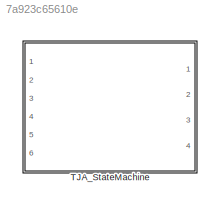
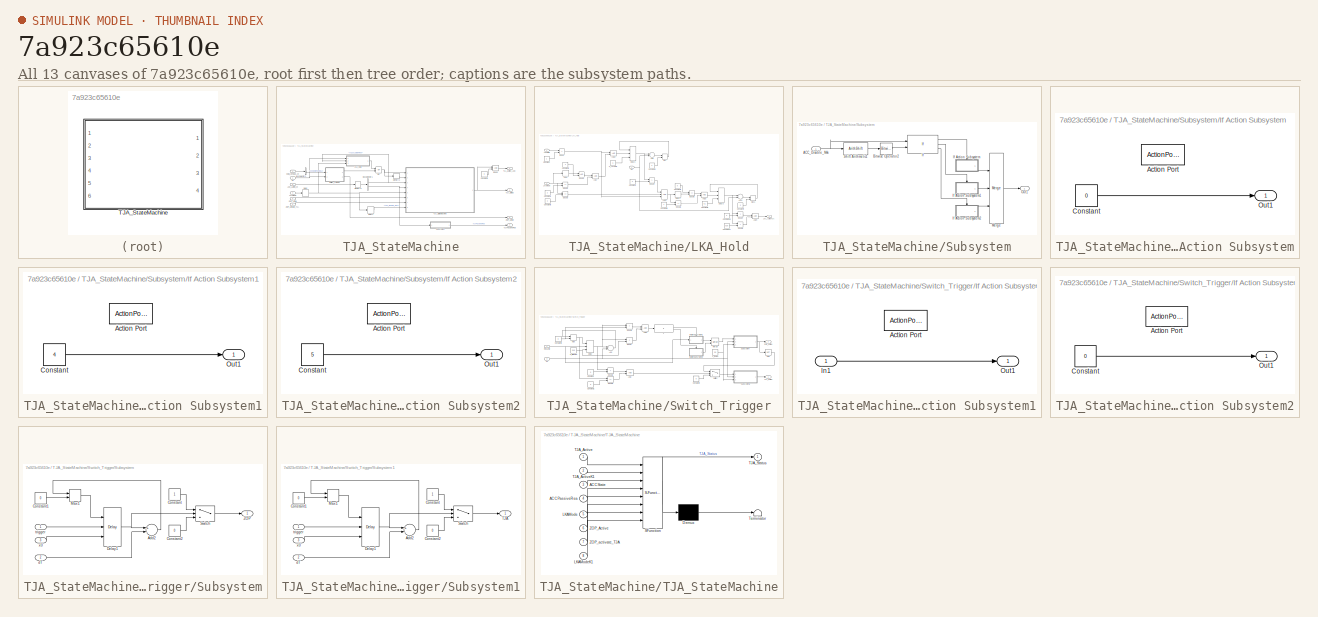
[diagram: thumbnail index - all 13 canvases of the model, root first then tree order]
MODEL slx_7a923c65610e
KIND model
CONFIG AbsTol = auto
CONFIG EnableMultiTasking = off
CONFIG FixedStep = auto
CONFIG MaxStep = auto
CONFIG MinStep = auto
CONFIG RelTol = 1e-3
CONFIG SampleTimeConstraint = Unconstrained
CONFIG Solver = VariableStepAuto
CONFIG SolverName = VariableStepAuto
CONFIG StartTime = 0.0
CONFIG StopTime = 10.0
BLOCK [SubSystem] TJA_StateMachine
  Ports = [6, 4]
  RequestExecContextInheritance = off
BLOCK [Inport] TJA_StateMachine/ACC_LgtCtrl_st
  IconDisplay = Port number
  Port = 3
BLOCK [BusSelector] TJA_StateMachine/Bus Selector1
  OutputAsBus = off
  OutputSignals = ACCVLCMainReq,ACC_Disable_Msk
  Ports = [1, 2]
BLOCK [BusSelector] TJA_StateMachine/Bus Selector2
  OutputAsBus = off
  OutputSignals = x1E1.CCSwStsRsmSwA
  Ports = [1, 1]
BLOCK [Inport] TJA_StateMachine/COM_VehBus_st
  IconDisplay = Port number
  Port = 2
BLOCK [Constant] TJA_StateMachine/Constant3
  OutDataTypeStr = single
  Value = 3
BLOCK [Delay] TJA_StateMachine/Delay
  DelayLength = 1
  InputPortMap = u0
  Ports = [1, 1]
BLOCK [Delay] TJA_StateMachine/Delay1
  DelayLength = 1
  InputPortMap = u0
  Ports = [1, 1]
BLOCK [RelationalOperator] TJA_StateMachine/Equal
  InputSameDT = off
  OutDataTypeStr = boolean
  Ports = [2, 1]
  RndMeth = Simplest
BLOCK [Inport] TJA_StateMachine/LKAMode
  IconDisplay = Port number
  Port = 4
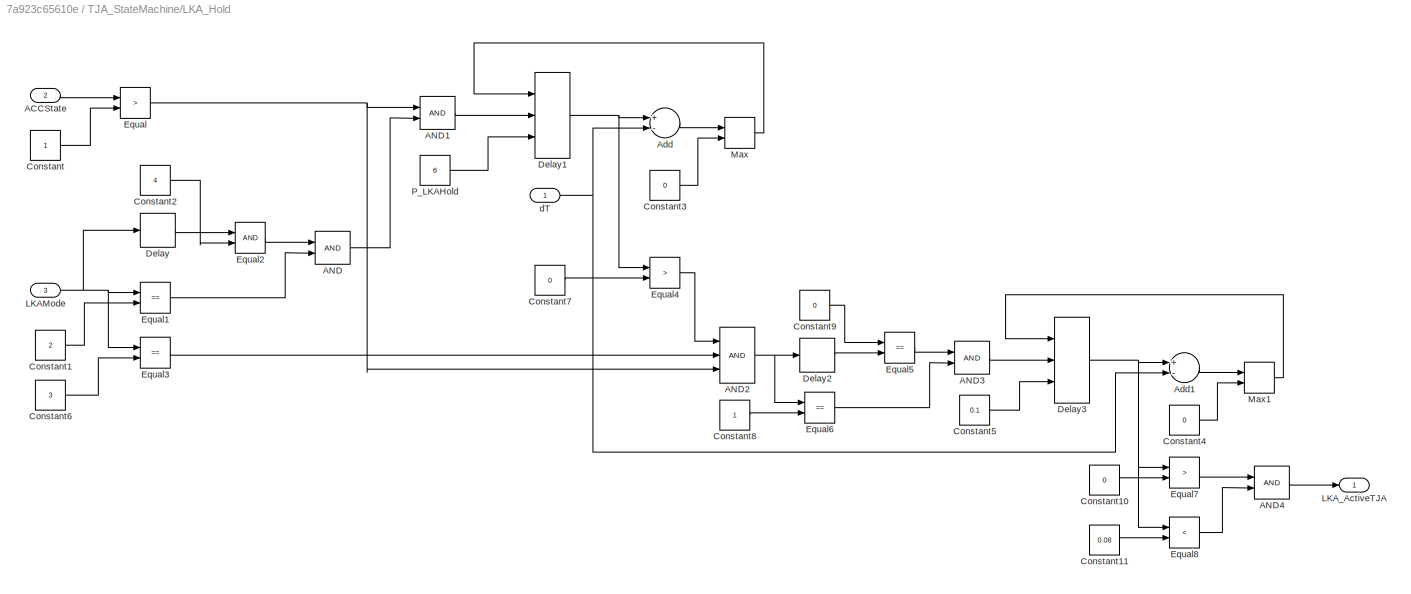
BLOCK [SubSystem] TJA_StateMachine/LKA_Hold
  Ports = [3, 1]
  RequestExecContextInheritance = off
BLOCK [Inport] TJA_StateMachine/LKA_Hold/ACCState
  IconDisplay = Port number
  Port = 2
BLOCK [Logic] TJA_StateMachine/LKA_Hold/AND
  AllPortsSameDT = off
  OutDataTypeStr = boolean
  Ports = [2, 1]
BLOCK [Logic] TJA_StateMachine/LKA_Hold/AND1
  AllPortsSameDT = off
  OutDataTypeStr = boolean
  Ports = [2, 1]
BLOCK [Logic] TJA_StateMachine/LKA_Hold/AND2
  AllPortsSameDT = off
  Inputs = 3
  OutDataTypeStr = boolean
  Ports = [3, 1]
BLOCK [Logic] TJA_StateMachine/LKA_Hold/AND3
  AllPortsSameDT = off
  OutDataTypeStr = boolean
  Ports = [2, 1]
BLOCK [Logic] TJA_StateMachine/LKA_Hold/AND4
  AllPortsSameDT = off
  OutDataTypeStr = boolean
  Ports = [2, 1]
BLOCK [Sum] TJA_StateMachine/LKA_Hold/Add
  InputSameDT = off
  Inputs = +-
  OutDataTypeStr = Inherit: Inherit via internal rule
  Ports = [2, 1]
  SaturateOnIntegerOverflow = off
BLOCK [Sum] TJA_StateMachine/LKA_Hold/Add1
  InputSameDT = off
  Inputs = +-
  OutDataTypeStr = Inherit: Inherit via internal rule
  Ports = [2, 1]
  SaturateOnIntegerOverflow = off
BLOCK [Constant] TJA_StateMachine/LKA_Hold/Constant
BLOCK [Constant] TJA_StateMachine/LKA_Hold/Constant1
  OutDataTypeStr = single
  Value = 2
BLOCK [Constant] TJA_StateMachine/LKA_Hold/Constant10
  OutDataTypeStr = single
  Value = 0
BLOCK [Constant] TJA_StateMachine/LKA_Hold/Constant11
  OutDataTypeStr = single
  Value = 0.08
BLOCK [Constant] TJA_StateMachine/LKA_Hold/Constant2
  OutDataTypeStr = single
  Value = 4
BLOCK [Constant] TJA_StateMachine/LKA_Hold/Constant3
  OutDataTypeStr = single
  Value = 0
BLOCK [Constant] TJA_StateMachine/LKA_Hold/Constant4
  OutDataTypeStr = single
  Value = 0
BLOCK [Constant] TJA_StateMachine/LKA_Hold/Constant5
  OutDataTypeStr = single
  Value = 0.1
BLOCK [Constant] TJA_StateMachine/LKA_Hold/Constant6
  OutDataTypeStr = single
  Value = 3
BLOCK [Constant] TJA_StateMachine/LKA_Hold/Constant7
  OutDataTypeStr = single
  Value = 0
BLOCK [Constant] TJA_StateMachine/LKA_Hold/Constant8
  OutDataTypeStr = single
BLOCK [Constant] TJA_StateMachine/LKA_Hold/Constant9
  OutDataTypeStr = single
  Value = 0
BLOCK [Delay] TJA_StateMachine/LKA_Hold/Delay
  DelayLength = 1
  InputPortMap = u0
  Ports = [1, 1]
BLOCK [Delay] TJA_StateMachine/LKA_Hold/Delay1
  DelayLength = 1
  ExternalReset = Rising
  InitialConditionSource = Input port
  InputPortMap = u0,r5,p4
  Ports = [3, 1]
BLOCK [Delay] TJA_StateMachine/LKA_Hold/Delay2
  DelayLength = 1
  InputPortMap = u0
  Ports = [1, 1]
BLOCK [Delay] TJA_StateMachine/LKA_Hold/Delay3
  DelayLength = 1
  ExternalReset = Rising
  InitialConditionSource = Input port
  InputPortMap = u0,r5,p4
  Ports = [3, 1]
BLOCK [RelationalOperator] TJA_StateMachine/LKA_Hold/Equal
  InputSameDT = off
  Operator = >
  OutDataTypeStr = boolean
  Ports = [2, 1]
  RndMeth = Simplest
BLOCK [RelationalOperator] TJA_StateMachine/LKA_Hold/Equal1
  InputSameDT = off
  Operator = ==
  OutDataTypeStr = boolean
  Ports = [2, 1]
  RndMeth = Simplest
BLOCK [RelationalOperator] TJA_StateMachine/LKA_Hold/Equal2
  InputSameDT = off
  OutDataTypeStr = boolean
  Ports = [2, 1]
  RndMeth = Simplest
BLOCK [RelationalOperator] TJA_StateMachine/LKA_Hold/Equal3
  InputSameDT = off
  Operator = ==
  OutDataTypeStr = boolean
  Ports = [2, 1]
  RndMeth = Simplest
BLOCK [RelationalOperator] TJA_StateMachine/LKA_Hold/Equal4
  InputSameDT = off
  Operator = >
  OutDataTypeStr = boolean
  Ports = [2, 1]
  RndMeth = Simplest
BLOCK [RelationalOperator] TJA_StateMachine/LKA_Hold/Equal5
  InputSameDT = off
  Operator = ==
  OutDataTypeStr = boolean
  Ports = [2, 1]
  RndMeth = Simplest
BLOCK [RelationalOperator] TJA_StateMachine/LKA_Hold/Equal6
  InputSameDT = off
  Operator = ==
  OutDataTypeStr = boolean
  Ports = [2, 1]
  RndMeth = Simplest
BLOCK [RelationalOperator] TJA_StateMachine/LKA_Hold/Equal7
  InputSameDT = off
  Operator = >
  OutDataTypeStr = boolean
  Ports = [2, 1]
  RndMeth = Simplest
BLOCK [RelationalOperator] TJA_StateMachine/LKA_Hold/Equal8
  InputSameDT = off
  Operator = <
  OutDataTypeStr = boolean
  Ports = [2, 1]
  RndMeth = Simplest
BLOCK [Inport] TJA_StateMachine/LKA_Hold/LKAMode
  IconDisplay = Port number
  Port = 3
BLOCK [Outport] TJA_StateMachine/LKA_Hold/LKA_ActiveTJA
  IconDisplay = Port number
BLOCK [MinMax] TJA_StateMachine/LKA_Hold/Max
  Function = max
  InputSameDT = off
  Inputs = 2
  Ports = [2, 1]
  SaturateOnIntegerOverflow = off
BLOCK [MinMax] TJA_StateMachine/LKA_Hold/Max1
  Function = max
  InputSameDT = off
  Inputs = 2
  Ports = [2, 1]
  SaturateOnIntegerOverflow = off
BLOCK [Constant] TJA_StateMachine/LKA_Hold/P_LKAHold
  OutDataTypeStr = single
  Value = 6
BLOCK [Inport] TJA_StateMachine/LKA_Hold/dT
  IconDisplay = Port number
BLOCK [Memory] TJA_StateMachine/Memory1
BLOCK [Memory] TJA_StateMachine/Memory2
BLOCK [Logic] TJA_StateMachine/OR
  AllPortsSameDT = off
  Operator = OR
  OutDataTypeStr = boolean
  Ports = [2, 1]
BLOCK [SubSystem] TJA_StateMachine/Subsystem
  Ports = [1, 1]
  RequestExecContextInheritance = off
BLOCK [Inport] TJA_StateMachine/Subsystem/ACC_Disable_Msk
  IconDisplay = Port number
BLOCK [Reference] TJA_StateMachine/Subsystem/Bitwise Operator2  REF=simulink/Logic and Bit
Operations/Bitwise
Operator
  Ports = [1, 1]
  SourceBlock = simulink/Logic and Bit\nOperations/Bitwise\nOperator
  SourceProductBaseCode = SL
  SourceProductName = Simulink
  SourceType = Bitwise Operator
BLOCK [If] TJA_StateMachine/Subsystem/If
  ElseIfExpressions = u2 == 1
  IfExpression = u1 == 0
  NumInputs = 2
  Ports = [2, 3]
BLOCK [SubSystem] TJA_StateMachine/Subsystem/If Action Subsystem
  Ports = [0, 1, 0, 0, 0, 0, 0, 1]
  RequestExecContextInheritance = off
  TreatAsAtomicUnit = on
BLOCK [ActionPort] TJA_StateMachine/Subsystem/If Action Subsystem/Action Port
BLOCK [Constant] TJA_StateMachine/Subsystem/If Action Subsystem/Constant
  OutDataTypeStr = single
  Value = 0
BLOCK [Outport] TJA_StateMachine/Subsystem/If Action Subsystem/Out1
  IconDisplay = Port number
BLOCK [SubSystem] TJA_StateMachine/Subsystem/If Action Subsystem1
  Ports = [0, 1, 0, 0, 0, 0, 0, 1]
  RequestExecContextInheritance = off
  TreatAsAtomicUnit = on
BLOCK [ActionPort] TJA_StateMachine/Subsystem/If Action Subsystem1/Action Port
BLOCK [Constant] TJA_StateMachine/Subsystem/If Action Subsystem1/Constant
  OutDataTypeStr = single
  Value = 4
BLOCK [Outport] TJA_StateMachine/Subsystem/If Action Subsystem1/Out1
  IconDisplay = Port number
BLOCK [SubSystem] TJA_StateMachine/Subsystem/If Action Subsystem2
  Ports = [0, 1, 0, 0, 0, 0, 0, 1]
  RequestExecContextInheritance = off
  TreatAsAtomicUnit = on
BLOCK [ActionPort] TJA_StateMachine/Subsystem/If Action Subsystem2/Action Port
BLOCK [Constant] TJA_StateMachine/Subsystem/If Action Subsystem2/Constant
  OutDataTypeStr = single
  Value = 5
BLOCK [Outport] TJA_StateMachine/Subsystem/If Action Subsystem2/Out1
  IconDisplay = Port number
BLOCK [Merge] TJA_StateMachine/Subsystem/Merge
  Inputs = 3
  Ports = [3, 1]
BLOCK [Outport] TJA_StateMachine/Subsystem/Out1
  IconDisplay = Port number
BLOCK [ArithShift] TJA_StateMachine/Subsystem/Shift Arithmetic1
  BitShiftDirection = Right
  BitShiftNumber = 3
  InputPortMap = u0
  Ports = [1, 1]
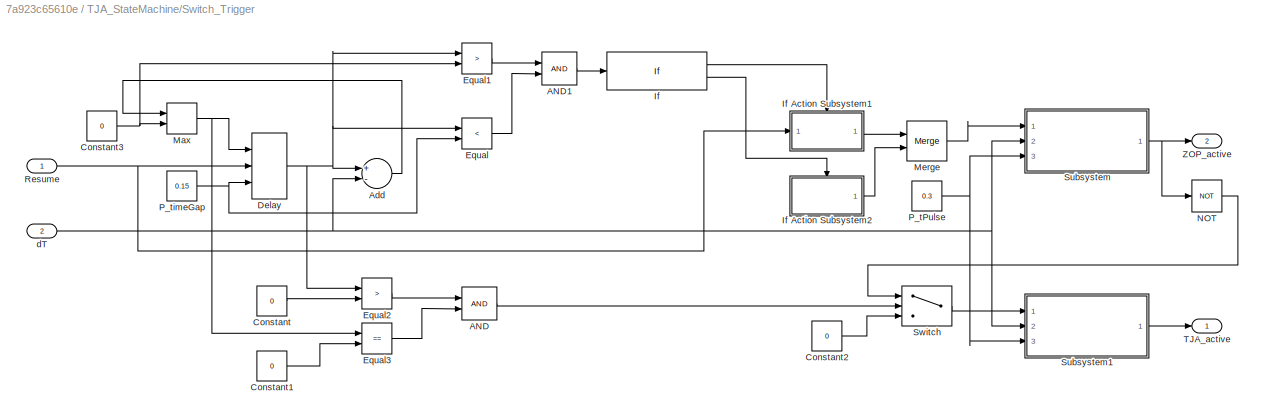
BLOCK [SubSystem] TJA_StateMachine/Switch_Trigger
  Ports = [2, 2]
  RequestExecContextInheritance = off
BLOCK [Logic] TJA_StateMachine/Switch_Trigger/AND
  AllPortsSameDT = off
  OutDataTypeStr = boolean
  Ports = [2, 1]
BLOCK [Logic] TJA_StateMachine/Switch_Trigger/AND1
  AllPortsSameDT = off
  OutDataTypeStr = boolean
  Ports = [2, 1]
BLOCK [Sum] TJA_StateMachine/Switch_Trigger/Add
  InputSameDT = off
  Inputs = +-
  OutDataTypeStr = Inherit: Inherit via internal rule
  Ports = [2, 1]
  SaturateOnIntegerOverflow = off
BLOCK [Constant] TJA_StateMachine/Switch_Trigger/Constant
  Value = 0
BLOCK [Constant] TJA_StateMachine/Switch_Trigger/Constant1
  Value = 0
BLOCK [Constant] TJA_StateMachine/Switch_Trigger/Constant2
  Value = 0
BLOCK [Constant] TJA_StateMachine/Switch_Trigger/Constant3
  OutDataTypeStr = single
  Value = 0
BLOCK [Delay] TJA_StateMachine/Switch_Trigger/Delay
  DelayLength = 1
  ExternalReset = Falling
  InitialConditionSource = Input port
  InputPortMap = u0,r5,p4
  Ports = [3, 1]
BLOCK [RelationalOperator] TJA_StateMachine/Switch_Trigger/Equal
  InputSameDT = off
  Operator = <
  OutDataTypeStr = boolean
  Ports = [2, 1]
  RndMeth = Simplest
BLOCK [RelationalOperator] TJA_StateMachine/Switch_Trigger/Equal1
  InputSameDT = off
  Operator = >
  OutDataTypeStr = boolean
  Ports = [2, 1]
  RndMeth = Simplest
BLOCK [RelationalOperator] TJA_StateMachine/Switch_Trigger/Equal2
  InputSameDT = off
  Operator = >
  OutDataTypeStr = boolean
  Ports = [2, 1]
  RndMeth = Simplest
BLOCK [RelationalOperator] TJA_StateMachine/Switch_Trigger/Equal3
  InputSameDT = off
  Operator = ==
  OutDataTypeStr = boolean
  Ports = [2, 1]
  RndMeth = Simplest
BLOCK [If] TJA_StateMachine/Switch_Trigger/If
  IfExpression = u1 == 1
  Ports = [1, 2]
BLOCK [SubSystem] TJA_StateMachine/Switch_Trigger/If Action Subsystem1
  Ports = [1, 1, 0, 0, 0, 0, 0, 1]
  RequestExecContextInheritance = off
  TreatAsAtomicUnit = on
BLOCK [ActionPort] TJA_StateMachine/Switch_Trigger/If Action Subsystem1/Action Port
BLOCK [Inport] TJA_StateMachine/Switch_Trigger/If Action Subsystem1/In1
  IconDisplay = Port number
BLOCK [Outport] TJA_StateMachine/Switch_Trigger/If Action Subsystem1/Out1
  IconDisplay = Port number
BLOCK [SubSystem] TJA_StateMachine/Switch_Trigger/If Action Subsystem2
  Ports = [0, 1, 0, 0, 0, 0, 0, 1]
  RequestExecContextInheritance = off
  TreatAsAtomicUnit = on
BLOCK [ActionPort] TJA_StateMachine/Switch_Trigger/If Action Subsystem2/Action Port
BLOCK [Constant] TJA_StateMachine/Switch_Trigger/If Action Subsystem2/Constant
  OutDataTypeStr = boolean
  Value = 0
BLOCK [Outport] TJA_StateMachine/Switch_Trigger/If Action Subsystem2/Out1
  IconDisplay = Port number
BLOCK [MinMax] TJA_StateMachine/Switch_Trigger/Max
  Function = max
  InputSameDT = off
  Inputs = 2
  Ports = [2, 1]
  SaturateOnIntegerOverflow = off
BLOCK [Merge] TJA_StateMachine/Switch_Trigger/Merge
  Ports = [2, 1]
BLOCK [Logic] TJA_StateMachine/Switch_Trigger/NOT
  AllPortsSameDT = off
  Operator = NOT
  OutDataTypeStr = boolean
  Ports = [1, 1]
BLOCK [Constant] TJA_StateMachine/Switch_Trigger/P_tPulse
  Value = 0.3
BLOCK [Constant] TJA_StateMachine/Switch_Trigger/P_timeGap
  Value = 0.15
BLOCK [Inport] TJA_StateMachine/Switch_Trigger/Resume
  IconDisplay = Port number
BLOCK [SubSystem] TJA_StateMachine/Switch_Trigger/Subsystem
  Ports = [3, 1]
  RequestExecContextInheritance = off
BLOCK [Sum] TJA_StateMachine/Switch_Trigger/Subsystem/Add2
  InputSameDT = off
  Inputs = +-
  OutDataTypeStr = Inherit: Inherit via internal rule
  Ports = [2, 1]
  SaturateOnIntegerOverflow = off
BLOCK [Constant] TJA_StateMachine/Switch_Trigger/Subsystem/Constant
BLOCK [Constant] TJA_StateMachine/Switch_Trigger/Subsystem/Constant1
  Value = 0
BLOCK [Constant] TJA_StateMachine/Switch_Trigger/Subsystem/Constant2
  Value = 0
BLOCK [Delay] TJA_StateMachine/Switch_Trigger/Subsystem/Delay1
  DelayLength = 1
  ExternalReset = Rising
  InitialConditionSource = Input port
  InputPortMap = u0,r5,p4
  Ports = [3, 1]
BLOCK [MinMax] TJA_StateMachine/Switch_Trigger/Subsystem/Max1
  Function = max
  InputSameDT = off
  Inputs = 2
  Ports = [2, 1]
  SaturateOnIntegerOverflow = off
BLOCK [Switch] TJA_StateMachine/Switch_Trigger/Subsystem/Switch
  Criteria = u2 > Threshold
  InputSameDT = off
  SaturateOnIntegerOverflow = off
BLOCK [Outport] TJA_StateMachine/Switch_Trigger/Subsystem/ZOP
  IconDisplay = Port number
BLOCK [Inport] TJA_StateMachine/Switch_Trigger/Subsystem/dT
  IconDisplay = Port number
  Port = 2
BLOCK [Inport] TJA_StateMachine/Switch_Trigger/Subsystem/trigger
  IconDisplay = Port number
BLOCK [Inport] TJA_StateMachine/Switch_Trigger/Subsystem/x0
  IconDisplay = Port number
  Port = 3
BLOCK [SubSystem] TJA_StateMachine/Switch_Trigger/Subsystem1
  Ports = [3, 1]
  RequestExecContextInheritance = off
BLOCK [Sum] TJA_StateMachine/Switch_Trigger/Subsystem1/Add2
  InputSameDT = off
  Inputs = +-
  OutDataTypeStr = Inherit: Inherit via internal rule
  Ports = [2, 1]
  SaturateOnIntegerOverflow = off
BLOCK [Constant] TJA_StateMachine/Switch_Trigger/Subsystem1/Constant
BLOCK [Constant] TJA_StateMachine/Switch_Trigger/Subsystem1/Constant1
  Value = 0
BLOCK [Constant] TJA_StateMachine/Switch_Trigger/Subsystem1/Constant2
  Value = 0
BLOCK [Delay] TJA_StateMachine/Switch_Trigger/Subsystem1/Delay1
  DelayLength = 1
  ExternalReset = Rising
  InitialConditionSource = Input port
  InputPortMap = u0,r5,p4
  Ports = [3, 1]
BLOCK [MinMax] TJA_StateMachine/Switch_Trigger/Subsystem1/Max1
  Function = max
  InputSameDT = off
  Inputs = 2
  Ports = [2, 1]
  SaturateOnIntegerOverflow = off
BLOCK [Switch] TJA_StateMachine/Switch_Trigger/Subsystem1/Switch
  Criteria = u2 > Threshold
  InputSameDT = off
  SaturateOnIntegerOverflow = off
BLOCK [Outport] TJA_StateMachine/Switch_Trigger/Subsystem1/TJA
  IconDisplay = Port number
BLOCK [Inport] TJA_StateMachine/Switch_Trigger/Subsystem1/dT
  IconDisplay = Port number
  Port = 2
BLOCK [Inport] TJA_StateMachine/Switch_Trigger/Subsystem1/trigger
  IconDisplay = Port number
BLOCK [Inport] TJA_StateMachine/Switch_Trigger/Subsystem1/x0
  IconDisplay = Port number
  Port = 3
BLOCK [Switch] TJA_StateMachine/Switch_Trigger/Switch
  Criteria = u2 > Threshold
  InputSameDT = off
  SaturateOnIntegerOverflow = off
BLOCK [Outport] TJA_StateMachine/Switch_Trigger/TJA_active
  IconDisplay = Port number
BLOCK [Outport] TJA_StateMachine/Switch_Trigger/ZOP_active
  IconDisplay = Port number
  Port = 2
BLOCK [Inport] TJA_StateMachine/Switch_Trigger/dT
  IconDisplay = Port number
  Port = 2
BLOCK [Outport] TJA_StateMachine/TJAPassiveRea
  IconDisplay = Port number
  Port = 4
BLOCK [SubSystem] TJA_StateMachine/TJA_StateMachine
  ErrorFcn = Stateflow.Translate.translate
  PermitHierarchicalResolution = ExplicitOnly
  Ports = [8, 1]
  RequestExecContextInheritance = off
  SFBlockType = Chart
  TreatAsAtomicUnit = on
BLOCK [Demux] TJA_StateMachine/TJA_StateMachine/ Demux 
  Outputs = 1
  Ports = [1, 1]
BLOCK [S-Function] TJA_StateMachine/TJA_StateMachine/ SFunction 
  EnableBusSupport = on
  FunctionName = sf_sfun
  PortCounts = [8 2]
  Ports = [8, 2]
  SFcnIsStateOwnerBlock = off
  SFunctionDeploymentMode = off
  Tag = Stateflow S-Function untitled 3
BLOCK [Terminator] TJA_StateMachine/TJA_StateMachine/ Terminator 
BLOCK [Inport] TJA_StateMachine/TJA_StateMachine/ACCPassiveRea
  IconDisplay = Port number
  Port = 4
BLOCK [Inport] TJA_StateMachine/TJA_StateMachine/ACCState
  IconDisplay = Port number
  Port = 3
BLOCK [Inport] TJA_StateMachine/TJA_StateMachine/LKAMode
  IconDisplay = Port number
  Port = 5
BLOCK [Inport] TJA_StateMachine/TJA_StateMachine/LKAModeK1
  IconDisplay = Port number
  Port = 8
BLOCK [Inport] TJA_StateMachine/TJA_StateMachine/TJA_Active
  IconDisplay = Port number
BLOCK [Inport] TJA_StateMachine/TJA_StateMachine/TJA_ActiveK1
  IconDisplay = Port number
  Port = 2
BLOCK [Outport] TJA_StateMachine/TJA_StateMachine/TJA_Status
  IconDisplay = Port number
BLOCK [Inport] TJA_StateMachine/TJA_StateMachine/ZOP_Active
  IconDisplay = Port number
  Port = 6
BLOCK [Inport] TJA_StateMachine/TJA_StateMachine/ZOP_activate_TJA
  IconDisplay = Port number
  Port = 7
BLOCK [Outport] TJA_StateMachine/TJA_Status
  IconDisplay = Port number
  Port = 3
BLOCK [Outport] TJA_StateMachine/TJA_active_ACC
  IconDisplay = Port number
BLOCK [Inport] TJA_StateMachine/ZOP_Active
  IconDisplay = Port number
  Port = 5
BLOCK [Inport] TJA_StateMachine/ZOP_activate_TJA
  IconDisplay = Port number
  Port = 6
BLOCK [Outport] TJA_StateMachine/ZOP_active
  IconDisplay = Port number
  Port = 2
BLOCK [Inport] TJA_StateMachine/dT
  IconDisplay = Port number
LINE TJA_StateMachine/ACC_LgtCtrl_st:1 -> TJA_StateMachine/Memory2:1
NET TJA_StateMachine/Bus Selector1:1 -> TJA_StateMachine/LKA_Hold:2, TJA_StateMachine/TJA_StateMachine:3
NET TJA_StateMachine/Bus Selector1:2 -> TJA_StateMachine/Subsystem:1, TJA_StateMachine/TJA_StateMachine:4
LINE TJA_StateMachine/Bus Selector2:1 -> TJA_StateMachine/Switch_Trigger:1
LINE TJA_StateMachine/COM_VehBus_st:1 -> TJA_StateMachine/Bus Selector2:1
LINE TJA_StateMachine/Constant3:1 -> TJA_StateMachine/Equal:2
LINE TJA_StateMachine/Delay1:1 -> TJA_StateMachine/TJA_StateMachine:8
NET TJA_StateMachine/Delay:1 -> TJA_StateMachine/Delay1:1, TJA_StateMachine/LKA_Hold:3, TJA_StateMachine/TJA_StateMachine:5
LINE TJA_StateMachine/Equal:1 -> TJA_StateMachine/TJA_active_ACC:1
LINE TJA_StateMachine/LKAMode:1 -> TJA_StateMachine/Delay:1
LINE TJA_StateMachine/LKA_Hold/ACCState:1 -> TJA_StateMachine/LKA_Hold/Equal:1
LINE TJA_StateMachine/LKA_Hold/AND1:1 -> TJA_StateMachine/LKA_Hold/Delay1:2
NET TJA_StateMachine/LKA_Hold/AND2:1 -> TJA_StateMachine/LKA_Hold/Delay2:1, TJA_StateMachine/LKA_Hold/Equal6:1
LINE TJA_StateMachine/LKA_Hold/AND3:1 -> TJA_StateMachine/LKA_Hold/Delay3:2
LINE TJA_StateMachine/LKA_Hold/AND4:1 -> TJA_StateMachine/LKA_Hold/LKA_ActiveTJA:1
LINE TJA_StateMachine/LKA_Hold/AND:1 -> TJA_StateMachine/LKA_Hold/AND1:2
LINE TJA_StateMachine/LKA_Hold/Add1:1 -> TJA_StateMachine/LKA_Hold/Max1:1
LINE TJA_StateMachine/LKA_Hold/Add:1 -> TJA_StateMachine/LKA_Hold/Max:1
LINE TJA_StateMachine/LKA_Hold/Constant10:1 -> TJA_StateMachine/LKA_Hold/Equal7:2
LINE TJA_StateMachine/LKA_Hold/Constant11:1 -> TJA_StateMachine/LKA_Hold/Equal8:2
LINE TJA_StateMachine/LKA_Hold/Constant1:1 -> TJA_StateMachine/LKA_Hold/Equal1:2
LINE TJA_StateMachine/LKA_Hold/Constant2:1 -> TJA_StateMachine/LKA_Hold/Equal2:2
LINE TJA_StateMachine/LKA_Hold/Constant3:1 -> TJA_StateMachine/LKA_Hold/Max:2
LINE TJA_StateMachine/LKA_Hold/Constant4:1 -> TJA_StateMachine/LKA_Hold/Max1:2
LINE TJA_StateMachine/LKA_Hold/Constant5:1 -> TJA_StateMachine/LKA_Hold/Delay3:3
LINE TJA_StateMachine/LKA_Hold/Constant6:1 -> TJA_StateMachine/LKA_Hold/Equal3:2
LINE TJA_StateMachine/LKA_Hold/Constant7:1 -> TJA_StateMachine/LKA_Hold/Equal4:2
LINE TJA_StateMachine/LKA_Hold/Constant8:1 -> TJA_StateMachine/LKA_Hold/Equal6:2
LINE TJA_StateMachine/LKA_Hold/Constant9:1 -> TJA_StateMachine/LKA_Hold/Equal5:1
LINE TJA_StateMachine/LKA_Hold/Constant:1 -> TJA_StateMachine/LKA_Hold/Equal:2
NET TJA_StateMachine/LKA_Hold/Delay1:1 -> TJA_StateMachine/LKA_Hold/Add:1, TJA_StateMachine/LKA_Hold/Equal4:1
LINE TJA_StateMachine/LKA_Hold/Delay2:1 -> TJA_StateMachine/LKA_Hold/Equal5:2
NET TJA_StateMachine/LKA_Hold/Delay3:1 -> TJA_StateMachine/LKA_Hold/Add1:1, TJA_StateMachine/LKA_Hold/Equal7:1, TJA_StateMachine/LKA_Hold/Equal8:1
LINE TJA_StateMachine/LKA_Hold/Delay:1 -> TJA_StateMachine/LKA_Hold/Equal2:1
LINE TJA_StateMachine/LKA_Hold/Equal1:1 -> TJA_StateMachine/LKA_Hold/AND:2
LINE TJA_StateMachine/LKA_Hold/Equal2:1 -> TJA_StateMachine/LKA_Hold/AND:1
LINE TJA_StateMachine/LKA_Hold/Equal3:1 -> TJA_StateMachine/LKA_Hold/AND2:2
LINE TJA_StateMachine/LKA_Hold/Equal4:1 -> TJA_StateMachine/LKA_Hold/AND2:1
LINE TJA_StateMachine/LKA_Hold/Equal5:1 -> TJA_StateMachine/LKA_Hold/AND3:1
LINE TJA_StateMachine/LKA_Hold/Equal6:1 -> TJA_StateMachine/LKA_Hold/AND3:2
LINE TJA_StateMachine/LKA_Hold/Equal7:1 -> TJA_StateMachine/LKA_Hold/AND4:1
LINE TJA_StateMachine/LKA_Hold/Equal8:1 -> TJA_StateMachine/LKA_Hold/AND4:2
NET TJA_StateMachine/LKA_Hold/Equal:1 -> TJA_StateMachine/LKA_Hold/AND1:1, TJA_StateMachine/LKA_Hold/AND2:3
NET TJA_StateMachine/LKA_Hold/LKAMode:1 -> TJA_StateMachine/LKA_Hold/Delay:1, TJA_StateMachine/LKA_Hold/Equal1:1, TJA_StateMachine/LKA_Hold/Equal3:1
LINE TJA_StateMachine/LKA_Hold/Max1:1 -> TJA_StateMachine/LKA_Hold/Delay3:1
LINE TJA_StateMachine/LKA_Hold/Max:1 -> TJA_StateMachine/LKA_Hold/Delay1:1
LINE TJA_StateMachine/LKA_Hold/P_LKAHold:1 -> TJA_StateMachine/LKA_Hold/Delay1:3
NET TJA_StateMachine/LKA_Hold/dT:1 -> TJA_StateMachine/LKA_Hold/Add1:2, TJA_StateMachine/LKA_Hold/Add:2
LINE TJA_StateMachine/LKA_Hold:1 -> TJA_StateMachine/OR:1
LINE TJA_StateMachine/Memory1:1 -> TJA_StateMachine/TJA_StateMachine:2
LINE TJA_StateMachine/Memory2:1 -> TJA_StateMachine/Bus Selector1:1
NET TJA_StateMachine/OR:1 -> TJA_StateMachine/Memory1:1, TJA_StateMachine/TJA_StateMachine:1
NET TJA_StateMachine/Subsystem/ACC_Disable_Msk:1 -> TJA_StateMachine/Subsystem/If:1, TJA_StateMachine/Subsystem/Shift Arithmetic1:1
LINE TJA_StateMachine/Subsystem/Bitwise Operator2:1 -> TJA_StateMachine/Subsystem/If:2
LINE TJA_StateMachine/Subsystem/If Action Subsystem/Constant:1 -> TJA_StateMachine/Subsystem/If Action Subsystem/Out1:1
LINE TJA_StateMachine/Subsystem/If Action Subsystem1/Constant:1 -> TJA_StateMachine/Subsystem/If Action Subsystem1/Out1:1
LINE TJA_StateMachine/Subsystem/If Action Subsystem1:1 -> TJA_StateMachine/Subsystem/Merge:2
LINE TJA_StateMachine/Subsystem/If Action Subsystem2/Constant:1 -> TJA_StateMachine/Subsystem/If Action Subsystem2/Out1:1
LINE TJA_StateMachine/Subsystem/If Action Subsystem2:1 -> TJA_StateMachine/Subsystem/Merge:3
LINE TJA_StateMachine/Subsystem/If Action Subsystem:1 -> TJA_StateMachine/Subsystem/Merge:1
LINE TJA_StateMachine/Subsystem/If:1 -> TJA_StateMachine/Subsystem/If Action Subsystem:ifaction
LINE TJA_StateMachine/Subsystem/If:2 -> TJA_StateMachine/Subsystem/If Action Subsystem1:ifaction
LINE TJA_StateMachine/Subsystem/If:3 -> TJA_StateMachine/Subsystem/If Action Subsystem2:ifaction
LINE TJA_StateMachine/Subsystem/Merge:1 -> TJA_StateMachine/Subsystem/Out1:1
LINE TJA_StateMachine/Subsystem/Shift Arithmetic1:1 -> TJA_StateMachine/Subsystem/Bitwise Operator2:1
LINE TJA_StateMachine/Subsystem:1 -> TJA_StateMachine/TJAPassiveRea:1
LINE TJA_StateMachine/Switch_Trigger/AND1:1 -> TJA_StateMachine/Switch_Trigger/If:1
LINE TJA_StateMachine/Switch_Trigger/AND:1 -> TJA_StateMachine/Switch_Trigger/Switch:2
LINE TJA_StateMachine/Switch_Trigger/Add:1 -> TJA_StateMachine/Switch_Trigger/Max:1
LINE TJA_StateMachine/Switch_Trigger/Constant1:1 -> TJA_StateMachine/Switch_Trigger/Equal3:2
LINE TJA_StateMachine/Switch_Trigger/Constant2:1 -> TJA_StateMachine/Switch_Trigger/Switch:3
NET TJA_StateMachine/Switch_Trigger/Constant3:1 -> TJA_StateMachine/Switch_Trigger/Equal1:2, TJA_StateMachine/Switch_Trigger/Max:2
LINE TJA_StateMachine/Switch_Trigger/Constant:1 -> TJA_StateMachine/Switch_Trigger/Equal2:2
NET TJA_StateMachine/Switch_Trigger/Delay:1 -> TJA_StateMachine/Switch_Trigger/Add:1, TJA_StateMachine/Switch_Trigger/Equal1:1, TJA_StateMachine/Switch_Trigger/Equal2:1, TJA_StateMachine/Switch_Trigger/Equal:1
LINE TJA_StateMachine/Switch_Trigger/Equal1:1 -> TJA_StateMachine/Switch_Trigger/AND1:1
LINE TJA_StateMachine/Switch_Trigger/Equal2:1 -> TJA_StateMachine/Switch_Trigger/AND:1
LINE TJA_StateMachine/Switch_Trigger/Equal3:1 -> TJA_StateMachine/Switch_Trigger/AND:2
LINE TJA_StateMachine/Switch_Trigger/Equal:1 -> TJA_StateMachine/Switch_Trigger/AND1:2
LINE TJA_StateMachine/Switch_Trigger/If Action Subsystem1/In1:1 -> TJA_StateMachine/Switch_Trigger/If Action Subsystem1/Out1:1
LINE TJA_StateMachine/Switch_Trigger/If Action Subsystem1:1 -> TJA_StateMachine/Switch_Trigger/Merge:1
LINE TJA_StateMachine/Switch_Trigger/If Action Subsystem2/Constant:1 -> TJA_StateMachine/Switch_Trigger/If Action Subsystem2/Out1:1
LINE TJA_StateMachine/Switch_Trigger/If Action Subsystem2:1 -> TJA_StateMachine/Switch_Trigger/Merge:2
LINE TJA_StateMachine/Switch_Trigger/If:1 -> TJA_StateMachine/Switch_Trigger/If Action Subsystem1:ifaction
LINE TJA_StateMachine/Switch_Trigger/If:2 -> TJA_StateMachine/Switch_Trigger/If Action Subsystem2:ifaction
NET TJA_StateMachine/Switch_Trigger/Max:1 -> TJA_StateMachine/Switch_Trigger/Delay:1, TJA_StateMachine/Switch_Trigger/Equal3:1
LINE TJA_StateMachine/Switch_Trigger/Merge:1 -> TJA_StateMachine/Switch_Trigger/Subsystem:1
LINE TJA_StateMachine/Switch_Trigger/NOT:1 -> TJA_StateMachine/Switch_Trigger/Switch:1
NET TJA_StateMachine/Switch_Trigger/P_tPulse:1 -> TJA_StateMachine/Switch_Trigger/Subsystem1:3, TJA_StateMachine/Switch_Trigger/Subsystem:3
NET TJA_StateMachine/Switch_Trigger/P_timeGap:1 -> TJA_StateMachine/Switch_Trigger/Delay:3, TJA_StateMachine/Switch_Trigger/Equal:2
NET TJA_StateMachine/Switch_Trigger/Resume:1 -> TJA_StateMachine/Switch_Trigger/Delay:2, TJA_StateMachine/Switch_Trigger/If Action Subsystem1:1
LINE TJA_StateMachine/Switch_Trigger/Subsystem/Add2:1 -> TJA_StateMachine/Switch_Trigger/Subsystem/Max1:1
LINE TJA_StateMachine/Switch_Trigger/Subsystem/Constant1:1 -> TJA_StateMachine/Switch_Trigger/Subsystem/Max1:2
LINE TJA_StateMachine/Switch_Trigger/Subsystem/Constant2:1 -> TJA_StateMachine/Switch_Trigger/Subsystem/Switch:3
LINE TJA_StateMachine/Switch_Trigger/Subsystem/Constant:1 -> TJA_StateMachine/Switch_Trigger/Subsystem/Switch:1
NET TJA_StateMachine/Switch_Trigger/Subsystem/Delay1:1 -> TJA_StateMachine/Switch_Trigger/Subsystem/Add2:1, TJA_StateMachine/Switch_Trigger/Subsystem/Switch:2
LINE TJA_StateMachine/Switch_Trigger/Subsystem/Max1:1 -> TJA_StateMachine/Switch_Trigger/Subsystem/Delay1:1
LINE TJA_StateMachine/Switch_Trigger/Subsystem/Switch:1 -> TJA_StateMachine/Switch_Trigger/Subsystem/ZOP:1
LINE TJA_StateMachine/Switch_Trigger/Subsystem/dT:1 -> TJA_StateMachine/Switch_Trigger/Subsystem/Add2:2
LINE TJA_StateMachine/Switch_Trigger/Subsystem/trigger:1 -> TJA_StateMachine/Switch_Trigger/Subsystem/Delay1:2
LINE TJA_StateMachine/Switch_Trigger/Subsystem/x0:1 -> TJA_StateMachine/Switch_Trigger/Subsystem/Delay1:3
LINE TJA_StateMachine/Switch_Trigger/Subsystem1/Add2:1 -> TJA_StateMachine/Switch_Trigger/Subsystem1/Max1:1
LINE TJA_StateMachine/Switch_Trigger/Subsystem1/Constant1:1 -> TJA_StateMachine/Switch_Trigger/Subsystem1/Max1:2
LINE TJA_StateMachine/Switch_Trigger/Subsystem1/Constant2:1 -> TJA_StateMachine/Switch_Trigger/Subsystem1/Switch:3
LINE TJA_StateMachine/Switch_Trigger/Subsystem1/Constant:1 -> TJA_StateMachine/Switch_Trigger/Subsystem1/Switch:1
NET TJA_StateMachine/Switch_Trigger/Subsystem1/Delay1:1 -> TJA_StateMachine/Switch_Trigger/Subsystem1/Add2:1, TJA_StateMachine/Switch_Trigger/Subsystem1/Switch:2
LINE TJA_StateMachine/Switch_Trigger/Subsystem1/Max1:1 -> TJA_StateMachine/Switch_Trigger/Subsystem1/Delay1:1
LINE TJA_StateMachine/Switch_Trigger/Subsystem1/Switch:1 -> TJA_StateMachine/Switch_Trigger/Subsystem1/TJA:1
LINE TJA_StateMachine/Switch_Trigger/Subsystem1/dT:1 -> TJA_StateMachine/Switch_Trigger/Subsystem1/Add2:2
LINE TJA_StateMachine/Switch_Trigger/Subsystem1/trigger:1 -> TJA_StateMachine/Switch_Trigger/Subsystem1/Delay1:2
LINE TJA_StateMachine/Switch_Trigger/Subsystem1/x0:1 -> TJA_StateMachine/Switch_Trigger/Subsystem1/Delay1:3
LINE TJA_StateMachine/Switch_Trigger/Subsystem1:1 -> TJA_StateMachine/Switch_Trigger/TJA_active:1
NET TJA_StateMachine/Switch_Trigger/Subsystem:1 -> TJA_StateMachine/Switch_Trigger/NOT:1, TJA_StateMachine/Switch_Trigger/ZOP_active:1
LINE TJA_StateMachine/Switch_Trigger/Switch:1 -> TJA_StateMachine/Switch_Trigger/Subsystem1:1
NET TJA_StateMachine/Switch_Trigger/dT:1 -> TJA_StateMachine/Switch_Trigger/Add:2, TJA_StateMachine/Switch_Trigger/Subsystem1:2, TJA_StateMachine/Switch_Trigger/Subsystem:2
LINE TJA_StateMachine/Switch_Trigger:1 -> TJA_StateMachine/OR:2
LINE TJA_StateMachine/Switch_Trigger:2 -> TJA_StateMachine/ZOP_active:1
NET TJA_StateMachine/TJA_StateMachine:1 -> TJA_StateMachine/Equal:1, TJA_StateMachine/TJA_Status:1
LINE TJA_StateMachine/ZOP_Active:1 -> TJA_StateMachine/TJA_StateMachine:6
LINE TJA_StateMachine/ZOP_activate_TJA:1 -> TJA_StateMachine/TJA_StateMachine:7
NET TJA_StateMachine/dT:1 -> TJA_StateMachine/LKA_Hold:1, TJA_StateMachine/Switch_Trigger:2
note: NET lines group one-source signal fan-out (src -> all destinations, sorted); 1:1 wires keep LINE
CHART TJA_StateMachine/TJA_StateMachine states=9 transitions=22
  STATE_LABEL 'TJA_Status:\n0 Off\n1 Passive\n2 Standby\n3 Active\n4 Override\n5 Error'
  STATE_LABEL 'ACCState:\n0 Off\n1 Passive\n2 Drive\n3 Standstill\n4 Override'
  STATE_LABEL 'Off\n\nen:\nTJA_Status = 0;'
  STATE_LABEL 'Passive\n\nen:\nTJA_Status = 1;'
  STATE_LABEL 'Standby\n\nen:\nTJA_Status = 2;'
  STATE_LABEL 'LKAMode:\n0 Error\n1 Off\n2 Idle\n3 Ready\n4 Active'
  STATE_LABEL 'Error\n\nen:\nTJA_Status = 5;'
  STATE_LABEL 'Override\n\nen:\nTJA_Status = 4;'
  STATE_LABEL 'Active\n\nen:\nTJA_Status = 3;'
